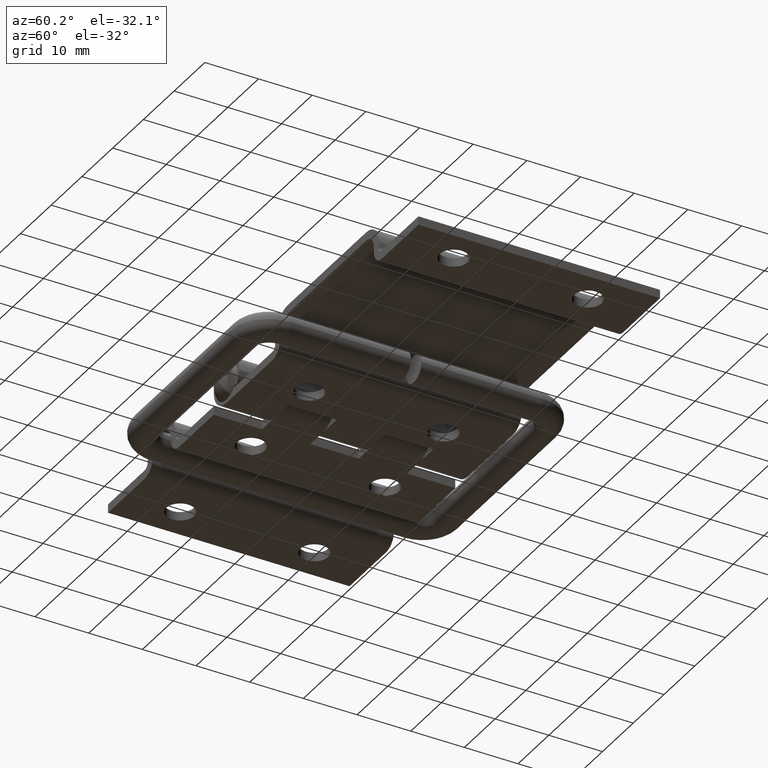
[diagram: clean part render]
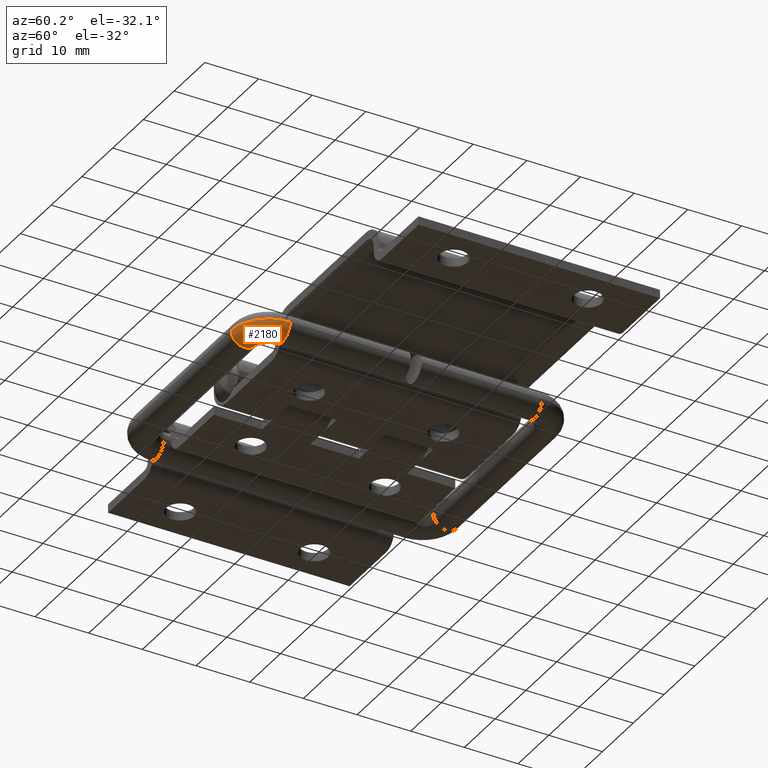
[diagram: same view with one face highlighted and labeled with its STEP entity id]
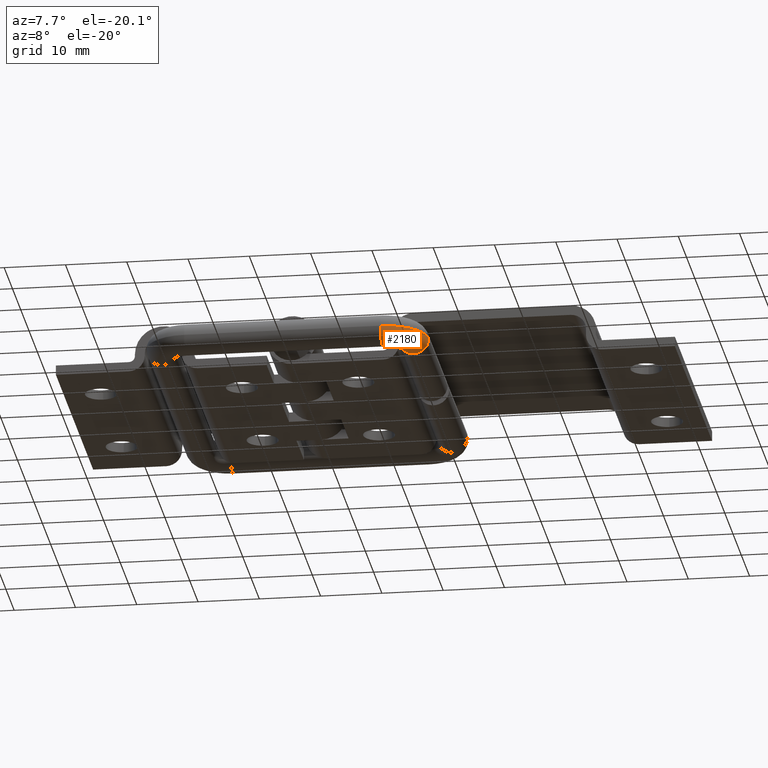
[diagram: same view with one face highlighted and labeled with its STEP entity id]
A machine part, auxiliary view. The second image highlights one B-rep face of the part: STEP entity #2180.
A second angle (auxiliary view) of the same face is appended — the face is thin or edge-on in the first view.
In plain terms, the highlighted toroidal blend (fillet) surface has major radius 4.5 mm and minor (blend) radius 2.5 mm.
Its self-contained STEP definition (entity closure, byte-faithful):
#30 = CARTESIAN_POINT ( 'NONE',  ( 15.50000000000000000, 1.599998000000000000, -1.000000000000000000 ) ) ;
#46 = FACE_OUTER_BOUND ( 'NONE', #449, .T. ) ;
#103 = CARTESIAN_POINT ( 'NONE',  ( 15.49999999999944900, 1.599998000000000300, -8.000000000000000000 ) ) ;
#162 = CARTESIAN_POINT ( 'NONE',  ( 15.49999999999944900, 1.599998000000000000, -5.500000000000000000 ) ) ;
#214 = ORIENTED_EDGE ( 'NONE', *, *, #3015, .F. ) ;
#236 = ORIENTED_EDGE ( 'NONE', *, *, #836, .T. ) ;
#306 = VERTEX_POINT ( 'NONE', #3708 ) ;
#345 = AXIS2_PLACEMENT_3D ( 'NONE', #2612, #611, #2942 ) ;
#368 = DIRECTION ( 'NONE',  ( 0.0000000000000000000, 0.0000000000000000000, 1.000000000000000000 ) ) ;
#449 = EDGE_LOOP ( 'NONE', ( #640, #236, #532, #214 ) ) ;
#501 = DIRECTION ( 'NONE',  ( 0.0000000000000000000, 0.0000000000000000000, -1.000000000000000000 ) ) ;
#532 = ORIENTED_EDGE ( 'NONE', *, *, #1819, .F. ) ;
#596 = CIRCLE ( 'NONE', #2890, 2.500000000000000400 ) ;
#611 = DIRECTION ( 'NONE',  ( -0.0000000000000000000, -0.0000000000000000000, -1.000000000000000000 ) ) ;
#640 = ORIENTED_EDGE ( 'NONE', *, *, #935, .T. ) ;
#703 = CARTESIAN_POINT ( 'NONE',  ( 15.50000000000000000, 1.599997999999999800, -1.000000000000000000 ) ) ;
#836 = EDGE_CURVE ( 'NONE', #306, #3046, #3634, .T. ) ;
#935 = EDGE_CURVE ( 'NONE', #4300, #306, #2645, .T. ) ;
#1034 = DIRECTION ( 'NONE',  ( 0.0000000000000000000, 0.0000000000000000000, 1.000000000000000000 ) ) ;
#1049 = DIRECTION ( 'NONE',  ( 0.0000000000000000000, 0.0000000000000000000, 1.000000000000000000 ) ) ;
#1218 = VERTEX_POINT ( 'NONE', #2300 ) ;
#1739 = TOROIDAL_SURFACE ( 'NONE', #3789, 4.500000000000199800, 2.500000000000000000 ) ;
#1772 = CIRCLE ( 'NONE', #4059, 2.000000000000199800 ) ;
#1819 = EDGE_CURVE ( 'NONE', #1218, #3046, #596, .T. ) ;
#2180 = ADVANCED_FACE ( 'NONE', ( #46 ), #1739, .T. ) ;
#2300 = CARTESIAN_POINT ( 'NONE',  ( 15.49999999999944900, 1.599998000000000000, -2.999999999999999600 ) ) ;
#2365 = CARTESIAN_POINT ( 'NONE',  ( 15.50000000000000000, 1.599998000000000000, -1.000000000000000000 ) ) ;
#2374 = DIRECTION ( 'NONE',  ( 0.0000000000000000000, 1.000000000000000000, 0.0000000000000000000 ) ) ;
#2495 = DIRECTION ( 'NONE',  ( -1.000000000000000000, -0.0000000000000000000, -4.818676322157799500E-017 ) ) ;
#2612 = CARTESIAN_POINT ( 'NONE',  ( 20.00000000000000000, 1.599998000000000000, -1.000000000000369900 ) ) ;
#2645 = CIRCLE ( 'NONE', #345, 2.499999999999998700 ) ;
#2890 = AXIS2_PLACEMENT_3D ( 'NONE', #162, #2495, #501 ) ;
#2942 = DIRECTION ( 'NONE',  ( 1.000000000000000000, 0.0000000000000000000, 0.0000000000000000000 ) ) ;
#2977 = CARTESIAN_POINT ( 'NONE',  ( 17.50000000000000000, 1.599998000000000000, -1.000000000000369900 ) ) ;
#3015 = EDGE_CURVE ( 'NONE', #4300, #1218, #1772, .T. ) ;
#3031 = DIRECTION ( 'NONE',  ( 0.0000000000000000000, 1.000000000000000000, 0.0000000000000000000 ) ) ;
#3046 = VERTEX_POINT ( 'NONE', #103 ) ;
#3088 = AXIS2_PLACEMENT_3D ( 'NONE', #30, #2374, #368 ) ;
#3634 = CIRCLE ( 'NONE', #3088, 7.000000000000200700 ) ;
#3708 = CARTESIAN_POINT ( 'NONE',  ( 22.50000000000000000, 1.599998000000000300, -1.000000000000369900 ) ) ;
#3789 = AXIS2_PLACEMENT_3D ( 'NONE', #2365, #4017, #1034 ) ;
#4017 = DIRECTION ( 'NONE',  ( 0.0000000000000000000, 1.000000000000000000, 0.0000000000000000000 ) ) ;
#4059 = AXIS2_PLACEMENT_3D ( 'NONE', #703, #3031, #1049 ) ;
#4300 = VERTEX_POINT ( 'NONE', #2977 ) ;